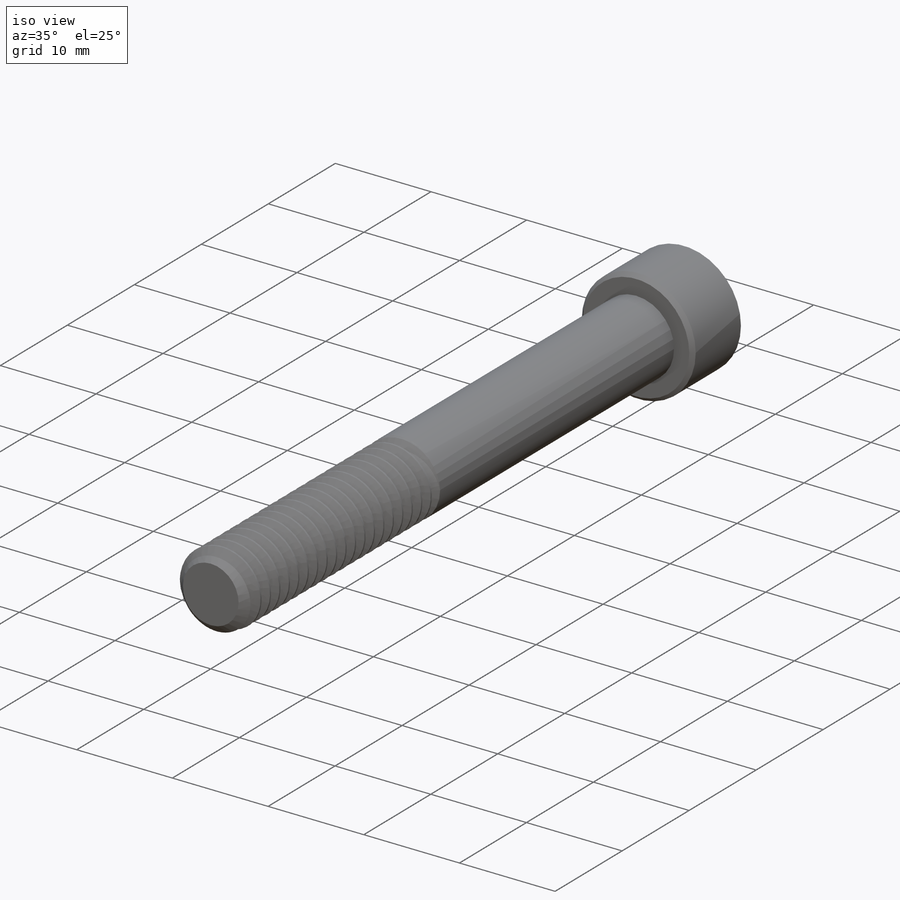
[diagram: iso view]
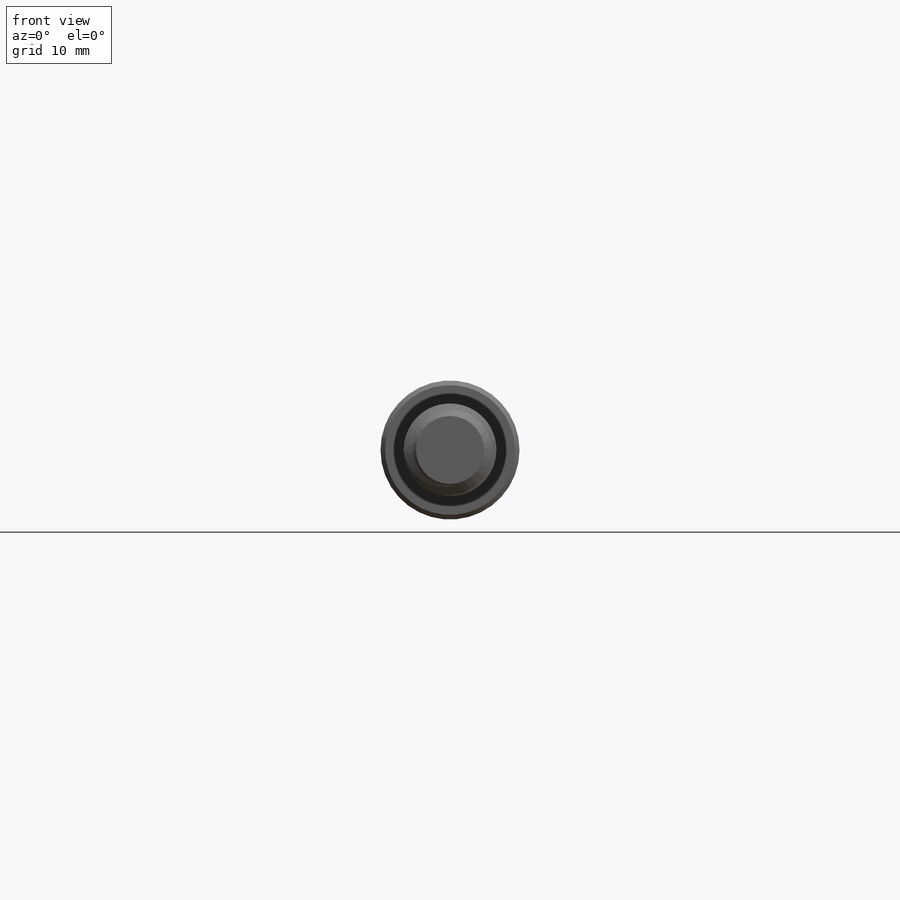
[diagram: front view]
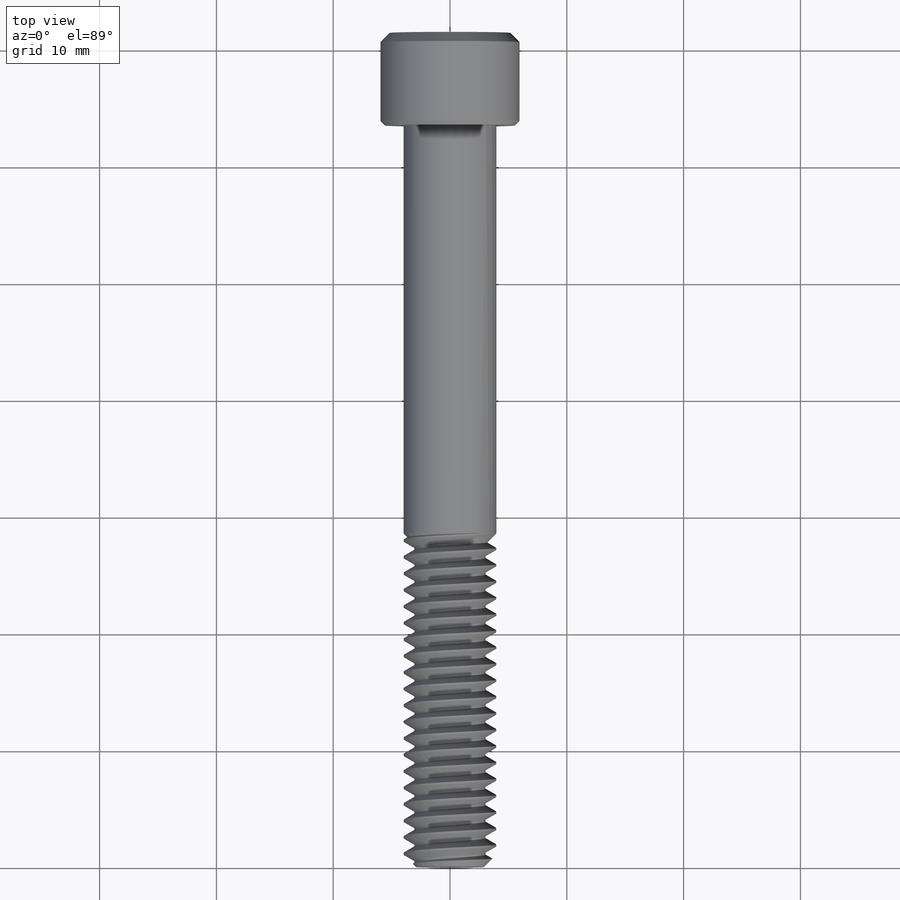
[diagram: top view]
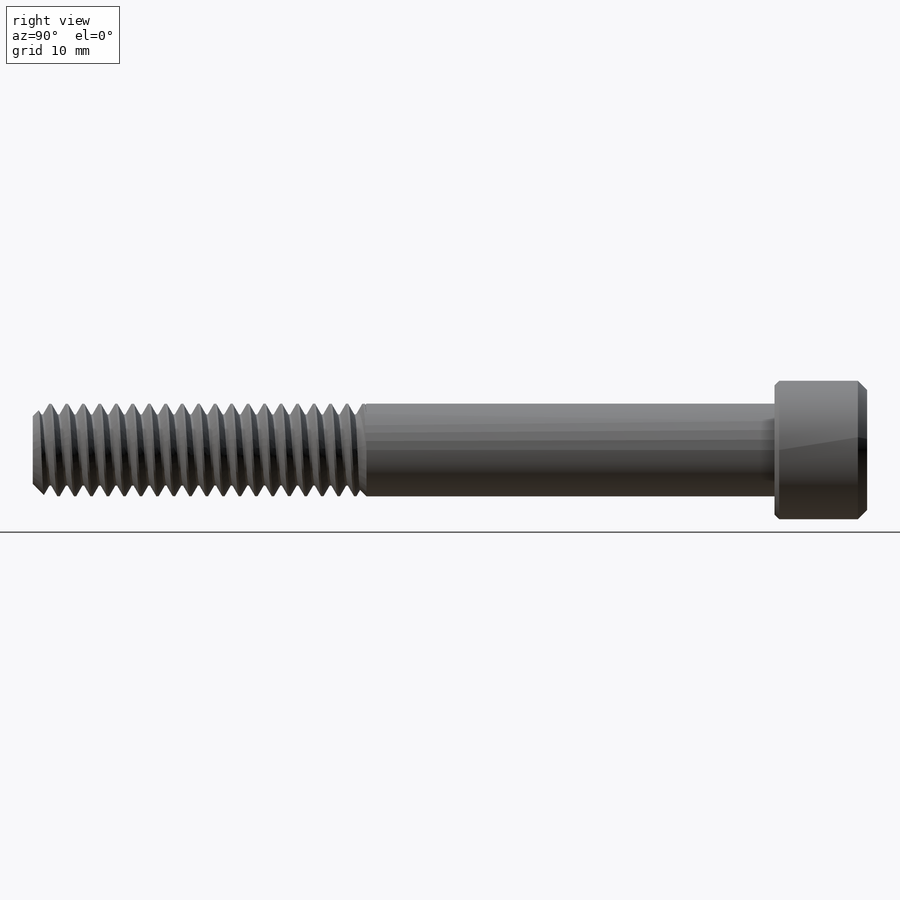
[diagram: right view]
SOLIDWORKS PART (.sldprt)
format: sldprt  version: not decoded by parser v0  size: 1,021,440 bytes
history: native  units: mm
features: sketch x8, chamfer x3, extrude x2, cut_extrude x2, material x1, helix x1, sweep x1, revolve x1 (+15 scaffold rows collapsed)
feature tree (34):
  scaffold x15  (default folders/planes/origin — collapsed)
  material  "Material <not specified>"
  sketch  "Sketch1"  dims[OD=7.9375mm]
  extrude  "Extrude1"  Depth=63.5mm screw length=63.5mm
  sketch  "Sketch2"
  helix  "Helix/Spiral1"  Pitch=31.397222mm pitch=1.411111mm
  chamfer  "Chamfer3"  Distance=1.058333mm Angle=45deg
  sketch  "Sketch3"  dims[c1.D1=~0.176389mm c1.D2=~0.705556mm c1.D3=~1.069256mm c2.D3=60.0deg]
  sweep  "Cut-Sweep1"
  sketch  "Sketch5"  dims[c1.Thread min=28.575mm c1.D2=0.635mm c1.D3=0.3302mm c1.D1=0.3302mm c2.D2=0.127mm c2.D3=1.0541mm c3.D3=25.0deg c3.D1=4.7625mm c4.D1=45.0deg]
  revolve  "partially thread"  Angle=360deg
  sketch  "Sketch6"  dims[head dia=~11.90625mm]
  extrude  "Extrude2"  Depth=7.9375mm head depth=7.9375mm
  sketch  "Sketch7"  dims[hex dia=6.35mm]
  cut_extrude  "Cut-Extrude1"  Depth=4.7625mm
  sketch  "Sketch8"
  cut_extrude  "Cut-Extrude2"  Depth=0.79375mm
  chamfer  "Chamfer1"  Distance=0.79375mm Angle=45deg
  chamfer  "Chamfer2"  Distance=0.396875mm Angle=45deg
  sketch  "Sketch9"  dims[c1.D1=~7.761111mm c1.D2=7.9375mm c1.D3=~11.90625mm c1.D4=63.5mm c1.Thread Length=~61.685158mm c2.D4=0.635mm c2.D5=0.3302mm]
decode coverage: 15 of 18 modeling features carry decoded parameters
note: ~ marks probable driven/reference dimensions
note: suppression state not decoded; provenance and decode notes live in map.json
